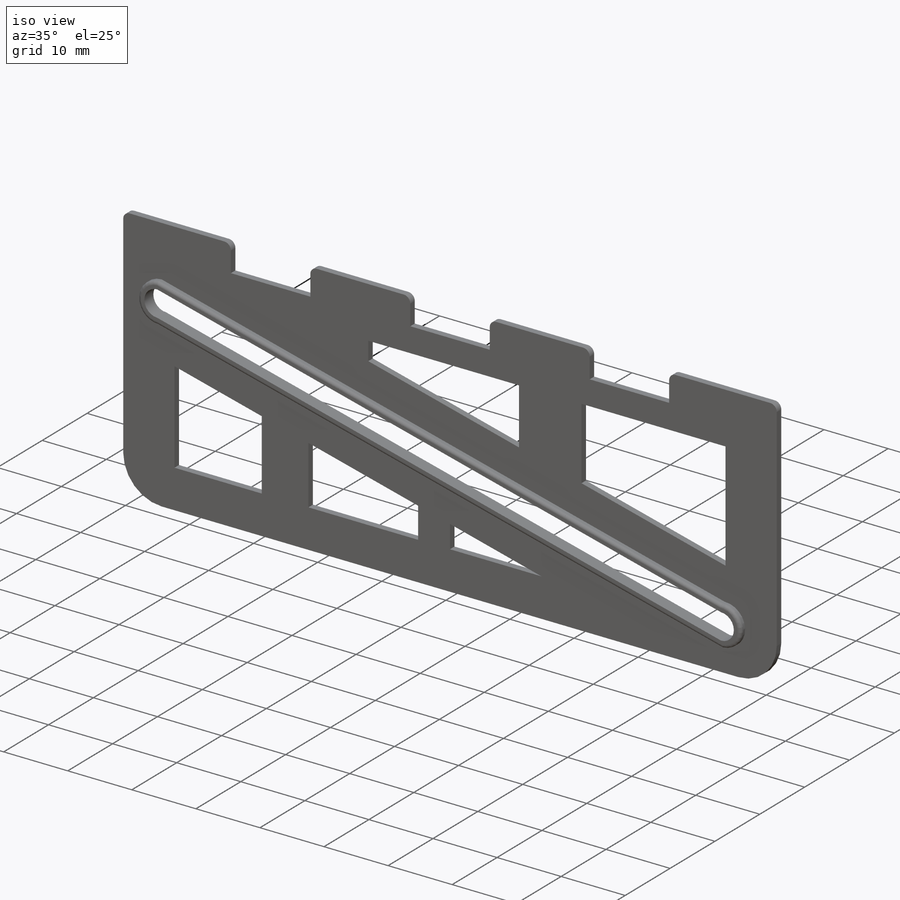
[diagram: iso view]
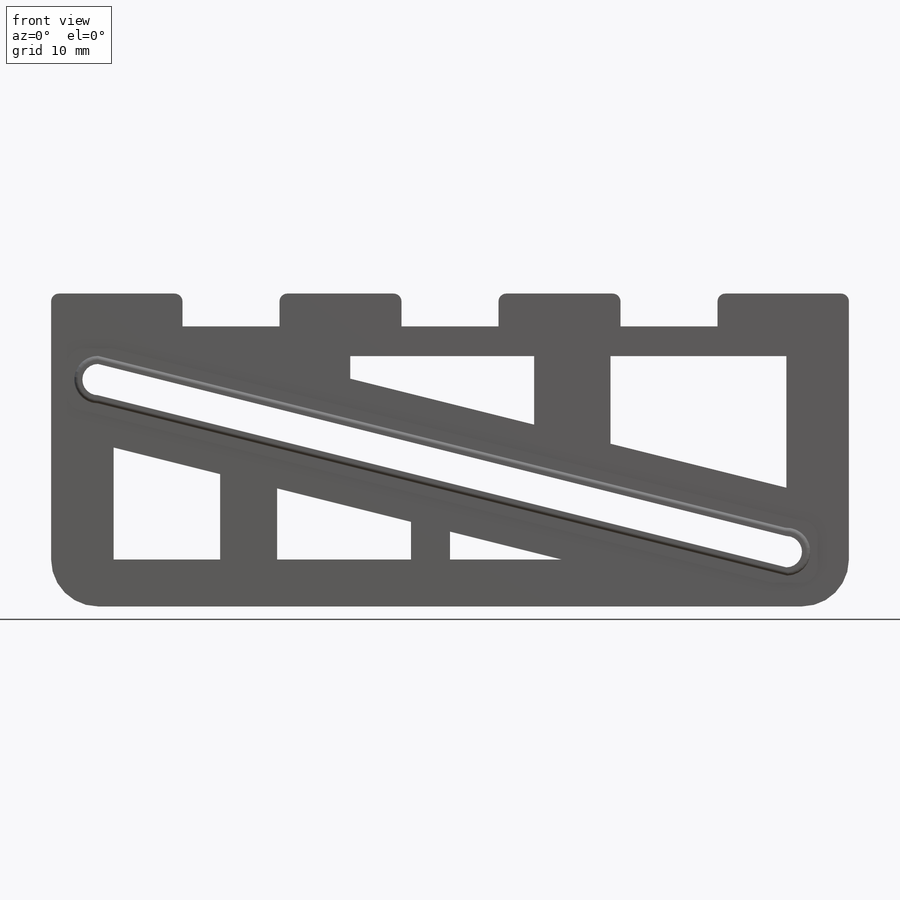
[diagram: front view]
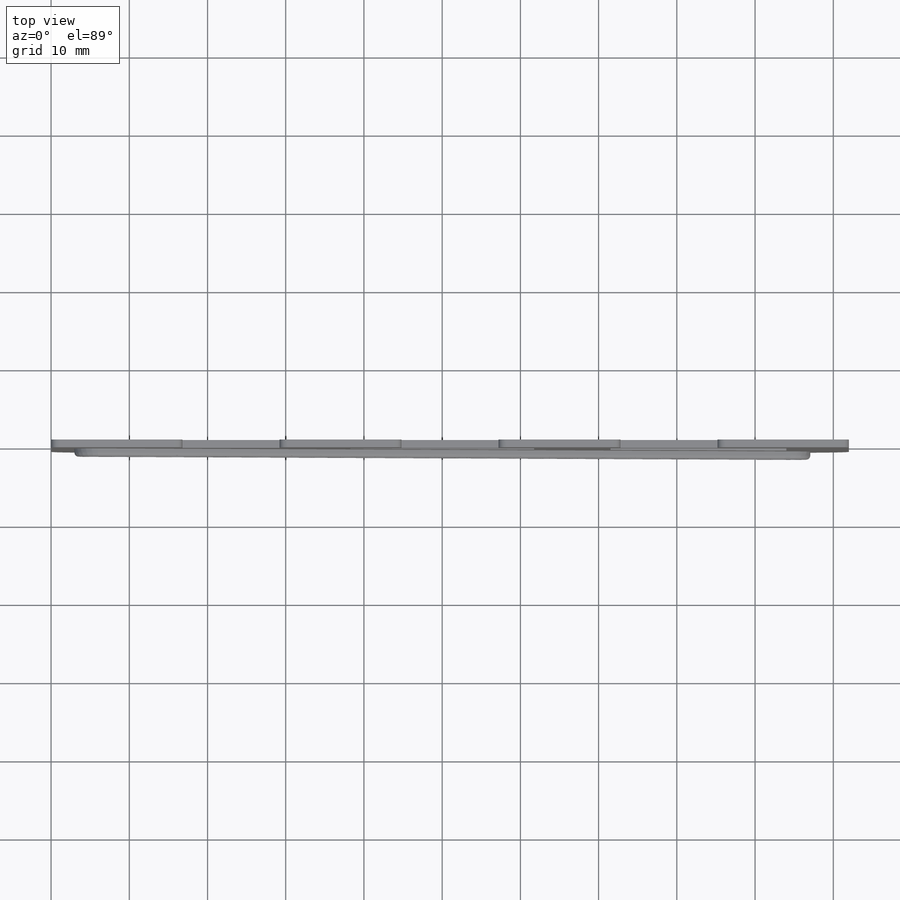
[diagram: top view]
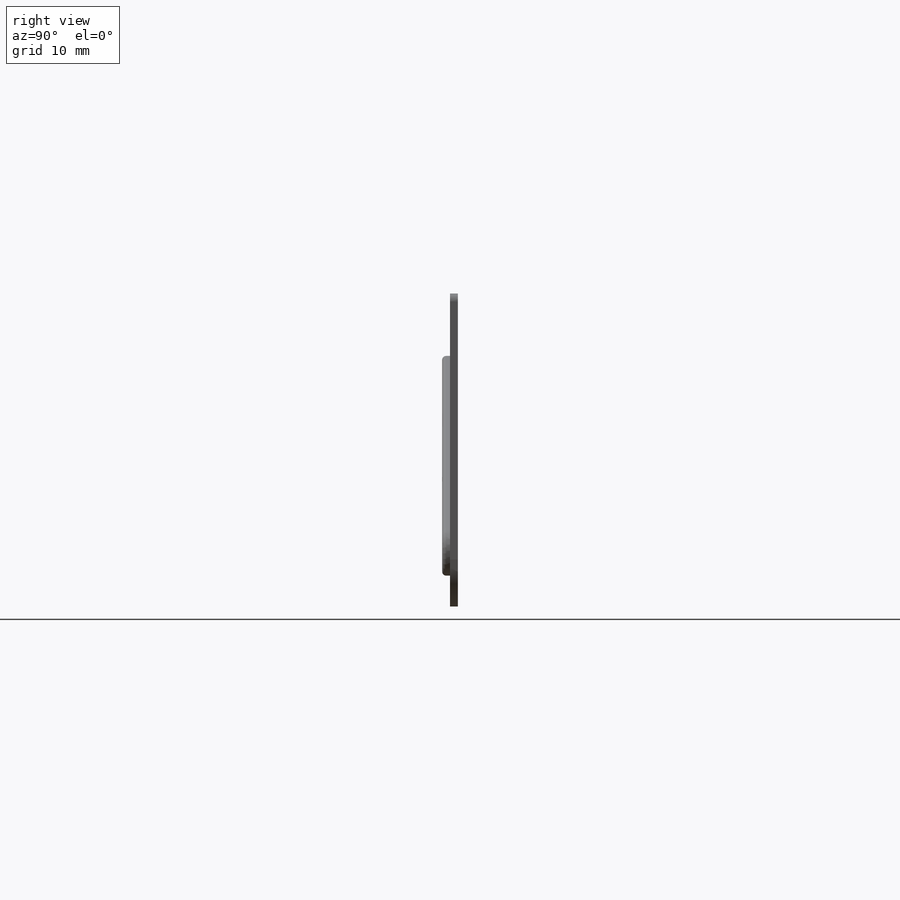
[diagram: right view]
SOLIDWORKS PART (.sldprt)
format: sldprt  version: not decoded by parser v0  size: 484,864 bytes
history: native  units: mm
features: sketch x4, fillet x4, plane x3, extrude x2, cut_extrude x2, pattern_linear x2, material x1 (+10 scaffold rows collapsed)
feature tree (28):
  scaffold x10  (default folders/planes/origin — collapsed)
  material  "Nylon 101"
  plane  "Ebene vorne"
  plane  "Ebene oben"
  plane  "Ebene rechts"
  sketch  "jiggy"  dims[c1.D10=2.0mm c1.D11=2.0mm c1.D1=11.0mm c1.D2=11.0mm c1.D3=44.0mm c1.D4=44.0mm c1.D5=44.0mm c1.D6=44.0mm c1.D7=4.0mm c1.D8=~4.433551mm c1.D9=4.57mm c2.D8=~3.88057mm c2.D9=2.0mm c2.D10=2.0mm c2.D11=~44.633626mm c2.D12=~107.525808mm c3.D11=~66.769567mm c3.D12=~125.393891mm c4.D11=8.0mm c4.D12=6.0mm c4.D13=9.0mm c4.D14=5.0mm]
  extrude  "jig"  Depth=1mm
  sketch  "border-sketch"  dims[c1.D1=~2.973561mm c1.D3=2.0mm c2.D1=1.0mm c2.D2=1.5mm c2.D3=~0.469538mm c3.D2=1.0mm]
  extrude  "border"  Depth=1mm
  sketch  "cut-scetch"  dims[D1=8.0mm D2=6.0mm D3=8.0mm D4=8.0mm D5=6.0mm D6=6.0mm D7=~23.514257mm]
  cut_extrude  "cuts"  Depth=1mm
  fillet  "Verrundung4"  Radius=6mm
  fillet  "Verrundung5"  Radius=0.5mm
  sketch  "fillet-"  dims[c1.D1=2.15mm c1.D2=4.2mm c1.D3=~18.365243mm c2.D2=12.4mm]
  cut_extrude  "fillet"  [1 undecoded]
  pattern_linear  "Lineares Muster1"  Count1=2 Count2=1 Spacing1=28mm Spacing2=10mm
  pattern_linear  "Lineares Muster2"  Count1=2 Count2=1 Spacing1=28mm Spacing2=10mm
  fillet  "Verrundung6"  Radius=1mm
  fillet  "Verrundung7"  Radius=1mm
decode coverage: 13 of 14 modeling features carry decoded parameters
note: ~ marks probable driven/reference dimensions
note: 1 parameter value undecoded
note: suppression state not decoded; provenance and decode notes live in map.json
